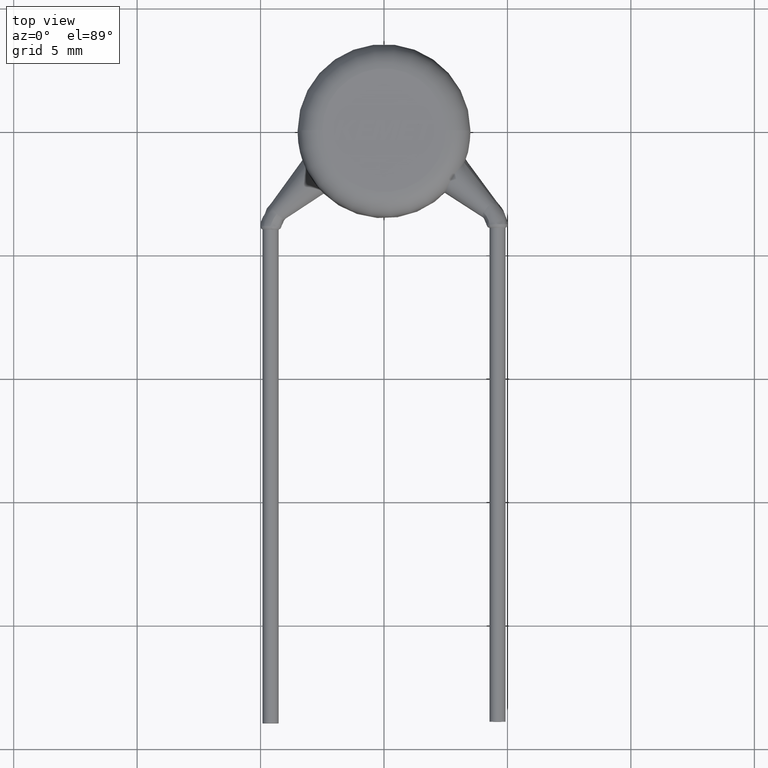
[diagram: clean part render]
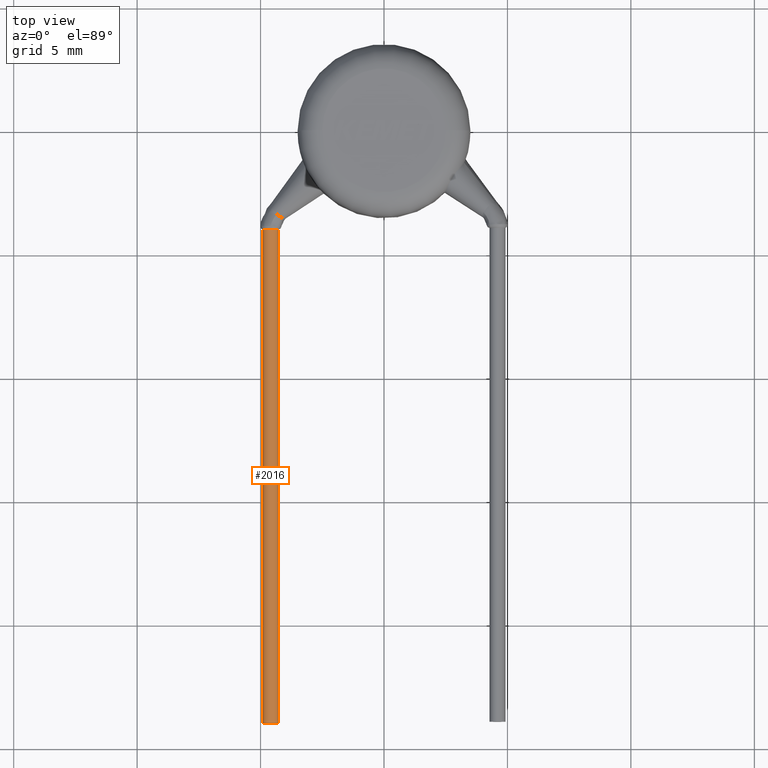
[diagram: same view with one face highlighted and labeled with its STEP entity id]
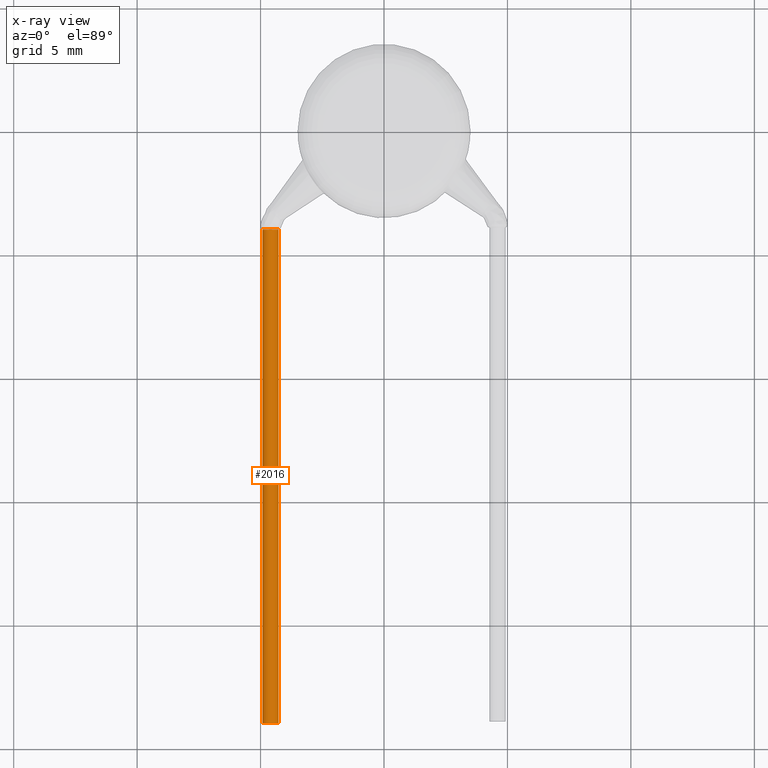
[diagram: x-ray of the same camera — body ghosted, the highlighted face saturated]
A machine part, top view. The second image highlights one B-rep face of the part: STEP entity #2016.
The next image is the same camera in x-ray: the body ghosted, the highlighted face saturated — about 0% of this face is hidden behind the body in this view.
In plain terms, the highlighted cylindrical surface (edge-blend (fillet) strip) has radius 0.325 mm, axis along (-0, -1, -0).
Its self-contained STEP definition (entity closure, byte-faithful):
#61 = ORIENTED_EDGE ( 'NONE', *, *, #1249, .F. ) ;
#123 = CIRCLE ( 'NONE', #3897, 0.3250000000000000700 ) ;
#423 = VERTEX_POINT ( 'NONE', #2996 ) ;
#490 = VERTEX_POINT ( 'NONE', #3696 ) ;
#575 = EDGE_CURVE ( 'NONE', #3406, #490, #1294, .T. ) ;
#594 = DIRECTION ( 'NONE',  ( 0.9915111155844303900, 0.0000000000000000000, 0.1300219507333992600 ) ) ;
#625 = DIRECTION ( 'NONE',  ( 2.081668171172168500E-016, 1.000000000000000000, -0.0000000000000000000 ) ) ;
#761 = EDGE_CURVE ( 'NONE', #1688, #423, #3451, .T. ) ;
#855 = CARTESIAN_POINT ( 'NONE',  ( -4.270725150090284700, -3.954901873055402600, 0.5304035071041445200 ) ) ;
#925 = CARTESIAN_POINT ( 'NONE',  ( -4.595725150090284000, -3.954901873055402600, 0.5304035071041445200 ) ) ;
#977 = AXIS2_PLACEMENT_3D ( 'NONE', #2239, #2533, #1893 ) ;
#1001 = DIRECTION ( 'NONE',  ( 2.081668171172168500E-016, 1.000000000000000000, -0.0000000000000000000 ) ) ;
#1005 = CYLINDRICAL_SURFACE ( 'NONE', #3026, 0.3249999999999997900 ) ;
#1128 = ORIENTED_EDGE ( 'NONE', *, *, #575, .F. ) ;
#1134 = VECTOR ( 'NONE', #2672, 1000.000000000000000 ) ;
#1174 = VECTOR ( 'NONE', #3487, 1000.000000000000000 ) ;
#1249 = EDGE_CURVE ( 'NONE', #490, #3742, #3198, .T. ) ;
#1294 = CIRCLE ( 'NONE', #977, 0.3249999999999999600 ) ;
#1320 = CARTESIAN_POINT ( 'NONE',  ( -4.595725150090286700, -23.95490187305540200, 0.5304035071041431900 ) ) ;
#1457 = CIRCLE ( 'NONE', #2059, 0.3250000000000001800 ) ;
#1563 = DIRECTION ( 'NONE',  ( 1.000000000000000000, 0.0000000000000000000, 0.0000000000000000000 ) ) ;
#1688 = VERTEX_POINT ( 'NONE', #2999 ) ;
#1893 = DIRECTION ( 'NONE',  ( 0.9915111155844310600, 0.0000000000000000000, 0.1300219507333933200 ) ) ;
#1897 = DIRECTION ( 'NONE',  ( -1.301042606982605300E-016, -1.000000000000000000, -6.505213034913026600E-017 ) ) ;
#1905 = ORIENTED_EDGE ( 'NONE', *, *, #2467, .F. ) ;
#1937 = CARTESIAN_POINT ( 'NONE',  ( -4.270725150090286500, -23.95490187305540200, 0.5304035071041438600 ) ) ;
#2004 = DIRECTION ( 'NONE',  ( 0.9915111155844307200, 0.0000000000000000000, 0.1300219507333966500 ) ) ;
#2016 = ADVANCED_FACE ( 'NONE', ( #3953 ), #1005, .T. ) ;
#2059 = AXIS2_PLACEMENT_3D ( 'NONE', #2593, #625, #594 ) ;
#2239 = CARTESIAN_POINT ( 'NONE',  ( -4.595725150090284000, -3.954901873055402600, 0.5304035071041445200 ) ) ;
#2445 = EDGE_LOOP ( 'NONE', ( #1905, #3659, #3825, #61, #1128 ) ) ;
#2467 = EDGE_CURVE ( 'NONE', #1688, #3406, #1457, .T. ) ;
#2533 = DIRECTION ( 'NONE',  ( 2.081668171172168500E-016, 1.000000000000000000, -0.0000000000000000000 ) ) ;
#2593 = CARTESIAN_POINT ( 'NONE',  ( -4.595725150090284000, -3.954901873055402600, 0.5304035071041445200 ) ) ;
#2672 = DIRECTION ( 'NONE',  ( -1.301042606982605300E-016, -1.000000000000000000, -6.505213034913026600E-017 ) ) ;
#2996 = CARTESIAN_POINT ( 'NONE',  ( -4.920725150090286900, -23.95490187305540200, 0.5304035071041438600 ) ) ;
#2999 = CARTESIAN_POINT ( 'NONE',  ( -4.920725150090284200, -3.954901873055402600, 0.5304035071041438600 ) ) ;
#3026 = AXIS2_PLACEMENT_3D ( 'NONE', #925, #1897, #1563 ) ;
#3034 = EDGE_CURVE ( 'NONE', #423, #3742, #123, .T. ) ;
#3198 = LINE ( 'NONE', #855, #1174 ) ;
#3406 = VERTEX_POINT ( 'NONE', #3693 ) ;
#3451 = LINE ( 'NONE', #3955, #1134 ) ;
#3487 = DIRECTION ( 'NONE',  ( -1.301042606982605300E-016, -1.000000000000000000, -6.505213034913026600E-017 ) ) ;
#3659 = ORIENTED_EDGE ( 'NONE', *, *, #761, .T. ) ;
#3693 = CARTESIAN_POINT ( 'NONE',  ( -4.532492965373972300, -3.954901873055402600, 0.8491929216335543100 ) ) ;
#3696 = CARTESIAN_POINT ( 'NONE',  ( -4.270725150090284700, -3.954901873055402600, 0.5304035071041438600 ) ) ;
#3742 = VERTEX_POINT ( 'NONE', #1937 ) ;
#3825 = ORIENTED_EDGE ( 'NONE', *, *, #3034, .T. ) ;
#3897 = AXIS2_PLACEMENT_3D ( 'NONE', #1320, #1001, #2004 ) ;
#3953 = FACE_OUTER_BOUND ( 'NONE', #2445, .T. ) ;
#3955 = CARTESIAN_POINT ( 'NONE',  ( -4.920725150090284200, -3.954901873055402600, 0.5304035071041445200 ) ) ;